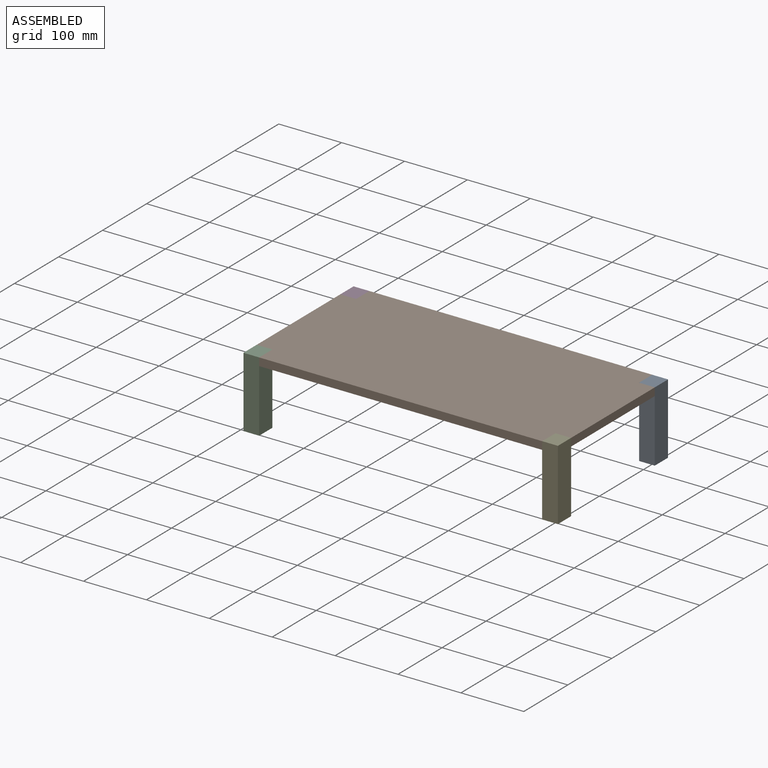
[diagram: assembled view]
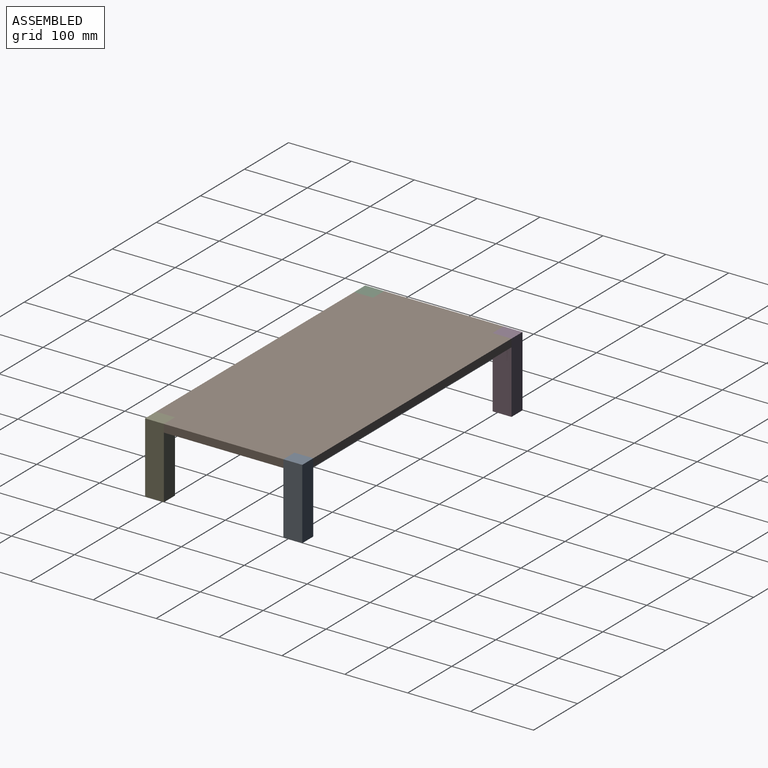
[diagram: assembled view, second angle]
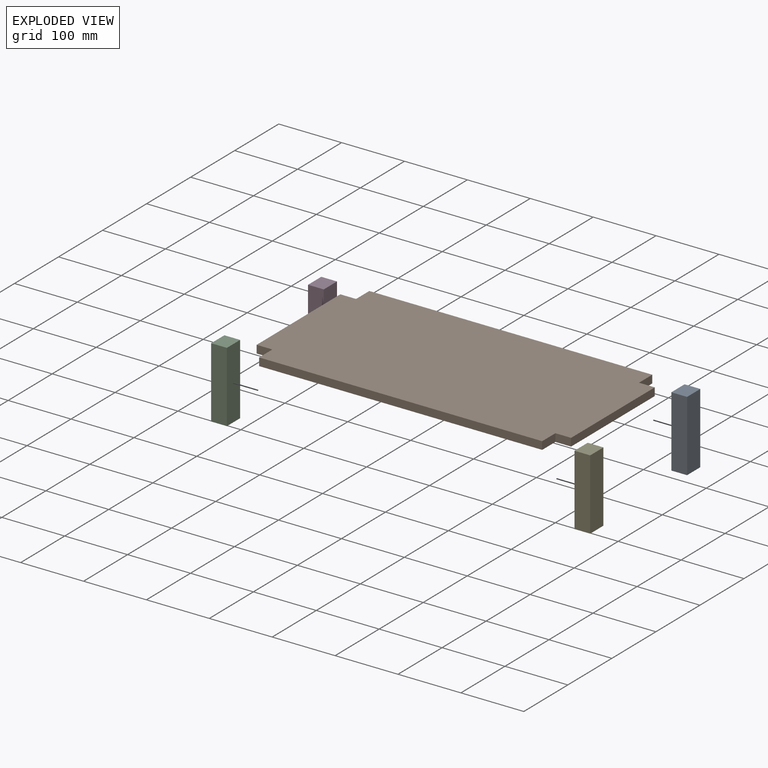
[diagram: exploded view]
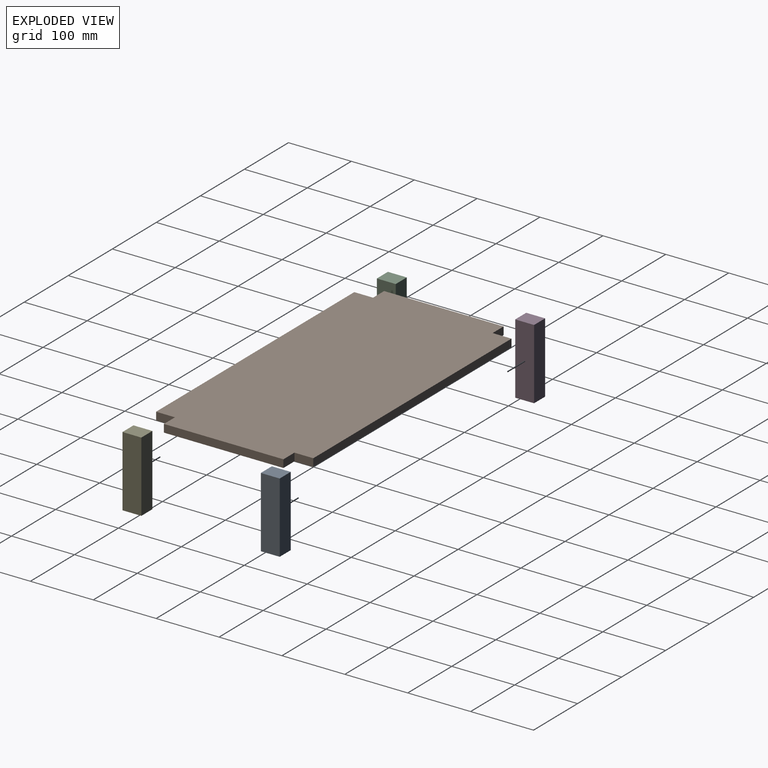
[diagram: exploded view, second angle]
ASSEMBLY  parts=5 mates=4
PART A: 6 faces, bbox 30x112.5x25 mm
  f0: plane 112.5x25mm, normal (-1,0,0), area 2812.5mm2, adj f1,f3,f4,f5
  f1: plane 112.5x30mm, normal (0,0,-1), area 3375mm2, adj f0,f2,f4,f5
  f2: plane 112.5x25mm, normal (1,0,0), area 2812.5mm2, adj f1,f3,f4,f5
  f3: plane 112.5x30mm, normal (0,0,1), area 3375mm2, adj f0,f2,f4,f5
  f4: plane 30x25mm, normal (0,-1,0), area 750mm2, adj f0,f1,f2,f3
  f5: plane 30x25mm, normal (0,1,0), area 750mm2, adj f0,f1,f2,f3
PART B: 14 faces, bbox 500x250x12.5 mm
  f0: plane 500x250mm, normal (0,0,-1), area 122000mm2, adj f1,f3,f4,f5,f6,f7,f8,f9
  f1: plane 450x12.5mm, normal (0,1,0), area 5625mm2, adj f0,f2,f9,f12
  f2: plane 500x250mm, normal (0,0,1), area 122000mm2, adj f1,f3,f4,f5,f6,f7,f8,f9
  f3: plane 450x12.5mm, normal (0,-1,0), area 5625mm2, adj f0,f2,f6,f10
  f4: plane 190x12.5mm, normal (1,0,0), area 2375mm2, adj f0,f2,f11,f13
  f5: plane 190x12.5mm, normal (-1,0,0), area 2375mm2, adj f0,f2,f7,f8
  f6: plane 30x12.5mm, normal (-1,0,0), area 375mm2, adj f0,f2,f3,f7
  f7: plane 25x12.5mm, normal (0,-1,0), area 312.5mm2, adj f0,f2,f5,f6
  f8: plane 25x12.5mm, normal (0,1,0), area 312.5mm2, adj f0,f2,f5,f9
  f9: plane 30x12.5mm, normal (-1,0,0), area 375mm2, adj f0,f1,f2,f8
  f10: plane 30x12.5mm, normal (1,0,0), area 375mm2, adj f0,f2,f3,f11
  f11: plane 25x12.5mm, normal (0,-1,0), area 312.5mm2, adj f0,f2,f4,f10
  f12: plane 30x12.5mm, normal (1,0,0), area 375mm2, adj f0,f1,f2,f13
  f13: plane 25x12.5mm, normal (0,1,0), area 312.5mm2, adj f0,f2,f4,f12
PART C: same geometry as A
PART D: same geometry as A
PART E: same geometry as A
PLACE A rot(axis=(0.58,-0.58,-0.58),120deg) t=(415.8,233.4,25.26)mm
PLACE B t=(-97.62,-19.73,12.76)mm fixed
PLACE C rot(axis=(0.58,0.58,0.58),120deg) t=(-84.2,-16.6,25.26)mm
PLACE D rot(axis=(-0.58,0.58,-0.58),120deg) t=(-84.2,233.4,-87.24)mm
PLACE E rot(axis=(-0.58,-0.58,0.58),120deg) t=(415.8,-16.6,-87.24)mm
MATE fastened A.f3 <-> B.f12  axis (-1,0,0) through (390.8,218.4,25.26)mm
MATE fastened E.f3 <-> B.f10  axis (-1,0,0) through (390.8,-1.6,25.26)mm
MATE fastened C.f3 <-> B.f6  axis (1,0,0) through (-59.2,-1.6,25.26)mm
MATE fastened D.f3 <-> B.f9  axis (1,0,0) through (-59.2,218.4,25.26)mm
